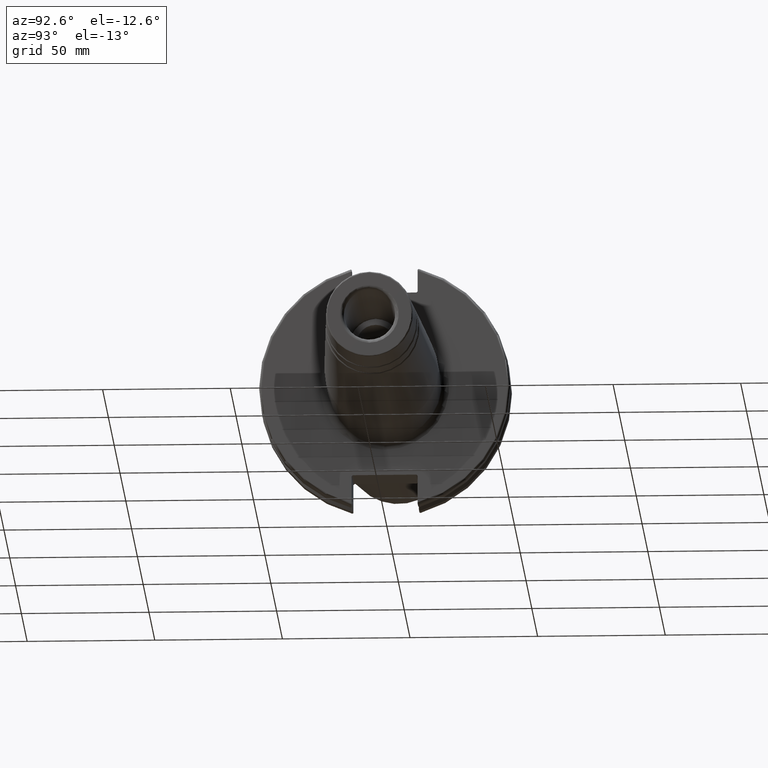
[diagram: clean part render]
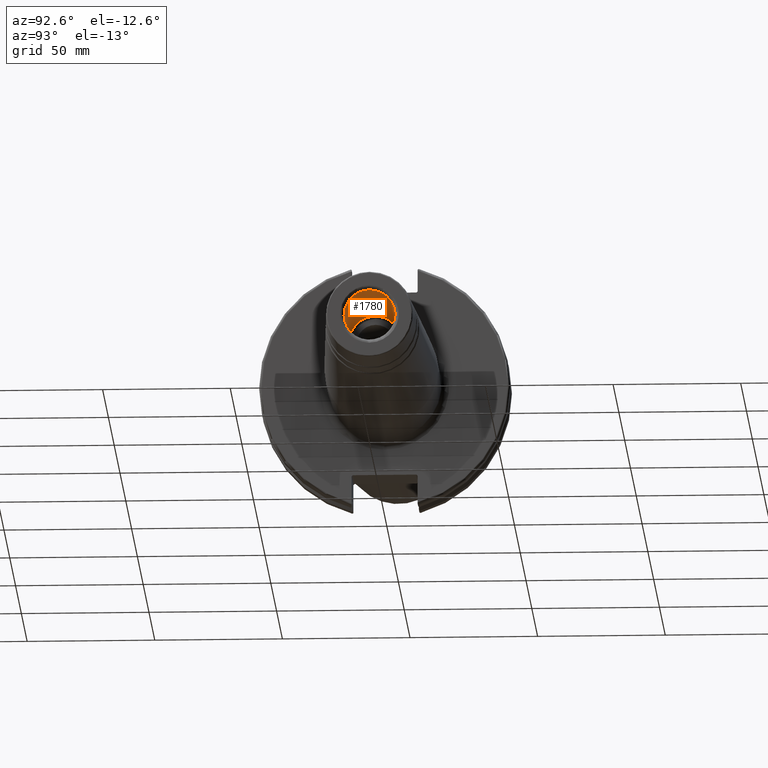
[diagram: same view with one face highlighted and labeled with its STEP entity id]
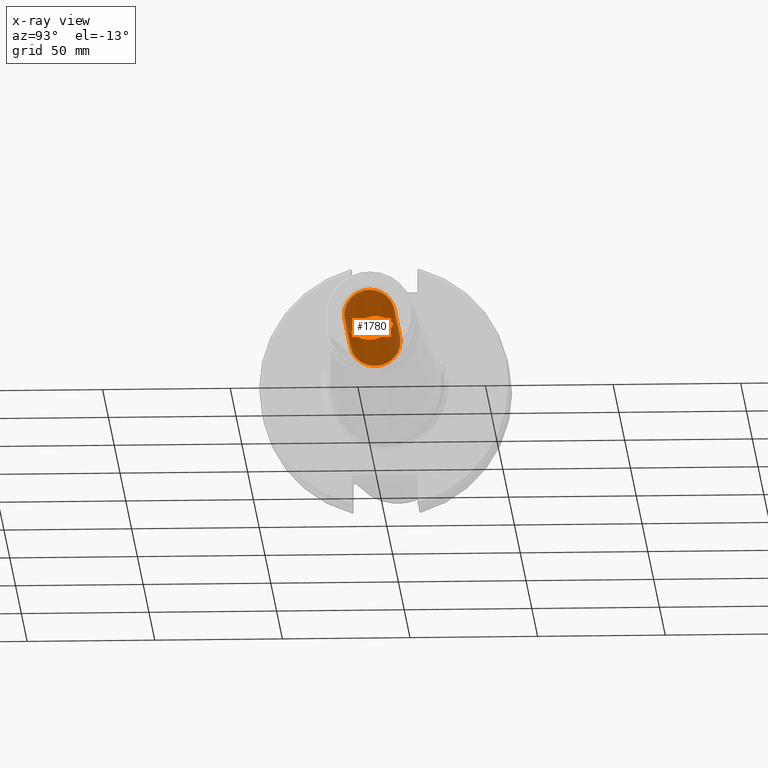
[diagram: x-ray of the same camera — body ghosted, the highlighted face saturated]
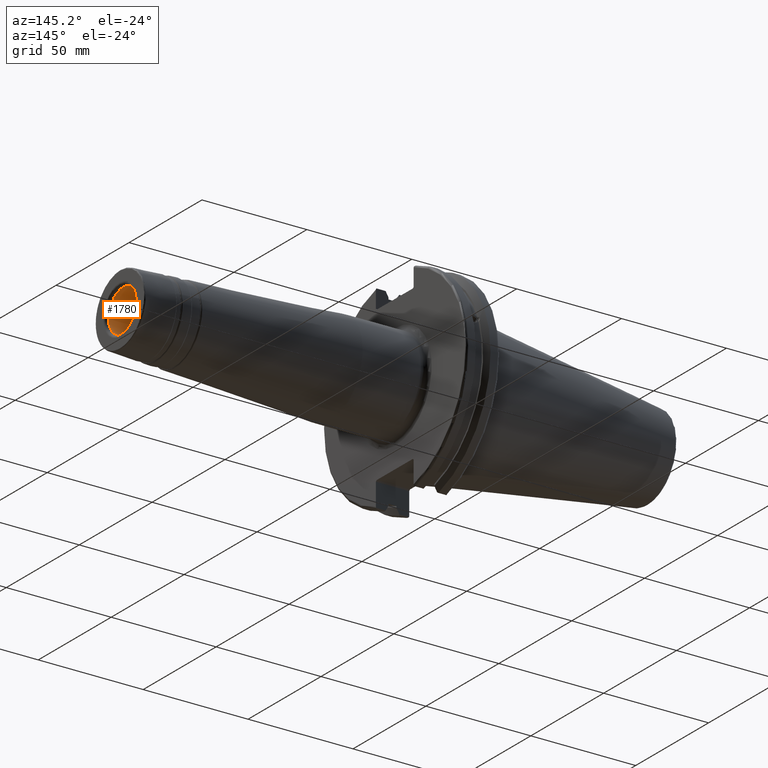
[diagram: same view with one face highlighted and labeled with its STEP entity id]
A machine part, auxiliary view. The second image highlights one B-rep face of the part: STEP entity #1780.
The next image is the same camera in x-ray: the body ghosted, the highlighted face saturated — about 10% of this face is hidden behind the body in this view.
A second angle (auxiliary view) of the same face is appended — the face is thin or edge-on in the first view.
In plain terms, the highlighted cylindrical surface (bore or boss wall) has radius 10 mm, axis along (1, 0, 0).
Its self-contained STEP definition (entity closure, byte-faithful):
#174=FACE_OUTER_BOUND('',#282,.T.);
#282=EDGE_LOOP('',(#1219,#1220,#1221,#1222,#1223));
#402=LINE('',#2844,#504);
#504=VECTOR('',#2170,10.);
#607=CIRCLE('',#1912,10.);
#608=CIRCLE('',#1913,10.);
#612=CIRCLE('',#1919,10.);
#734=VERTEX_POINT('',#2832);
#735=VERTEX_POINT('',#2833);
#738=VERTEX_POINT('',#2843);
#924=EDGE_CURVE('',#734,#735,#607,.T.);
#925=EDGE_CURVE('',#735,#734,#608,.T.);
#929=EDGE_CURVE('',#735,#738,#402,.T.);
#930=EDGE_CURVE('',#738,#738,#612,.T.);
#1219=ORIENTED_EDGE('',*,*,#924,.F.);
#1220=ORIENTED_EDGE('',*,*,#925,.F.);
#1221=ORIENTED_EDGE('',*,*,#929,.T.);
#1222=ORIENTED_EDGE('',*,*,#930,.F.);
#1223=ORIENTED_EDGE('',*,*,#929,.F.);
#1749=CYLINDRICAL_SURFACE('',#1918,10.);
#1780=ADVANCED_FACE('',(#174),#1749,.F.);
#1912=AXIS2_PLACEMENT_3D('',#2834,#2156,#2157);
#1913=AXIS2_PLACEMENT_3D('',#2835,#2158,#2159);
#1918=AXIS2_PLACEMENT_3D('',#2842,#2168,#2169);
#1919=AXIS2_PLACEMENT_3D('',#2845,#2171,#2172);
#2156=DIRECTION('center_axis',(-1.,0.,0.));
#2157=DIRECTION('ref_axis',(0.,-1.,1.83697019872103E-16));
#2158=DIRECTION('center_axis',(-1.,0.,0.));
#2159=DIRECTION('ref_axis',(0.,-1.,1.83697019872103E-16));
#2168=DIRECTION('center_axis',(1.,0.,0.));
#2169=DIRECTION('ref_axis',(0.,1.,0.));
#2170=DIRECTION('',(-1.,0.,0.));
#2171=DIRECTION('center_axis',(1.,0.,0.));
#2172=DIRECTION('ref_axis',(0.,0.,-1.));
#2832=CARTESIAN_POINT('',(148.5,-1.22464679914735E-15,10.));
#2833=CARTESIAN_POINT('',(148.5,-10.,-1.22464679914735E-15));
#2834=CARTESIAN_POINT('Origin',(148.5,0.,0.));
#2835=CARTESIAN_POINT('Origin',(148.5,0.,0.));
#2842=CARTESIAN_POINT('Origin',(125.6,0.,0.));
#2843=CARTESIAN_POINT('',(101.2,-10.,-1.22464679914735E-15));
#2844=CARTESIAN_POINT('',(125.6,-10.,-1.22464679914735E-15));
#2845=CARTESIAN_POINT('Origin',(101.2,0.,0.));